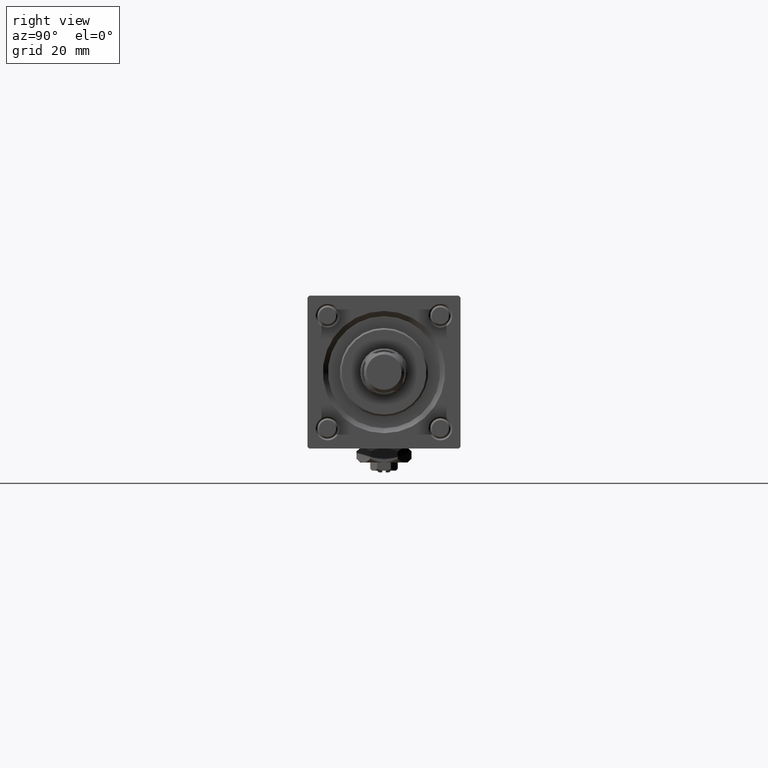
[diagram: clean part render]
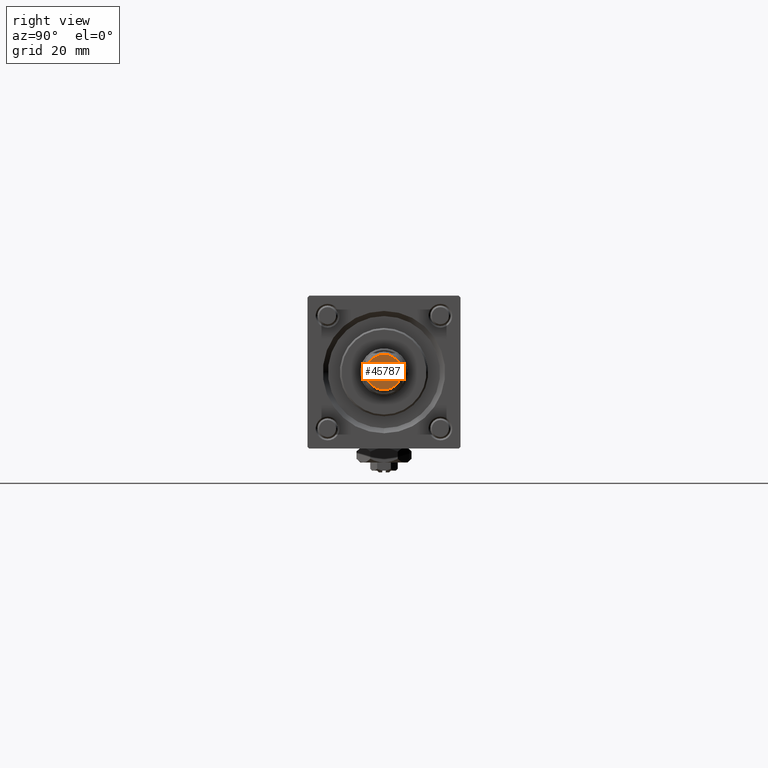
[diagram: same view with one face highlighted and labeled with its STEP entity id]
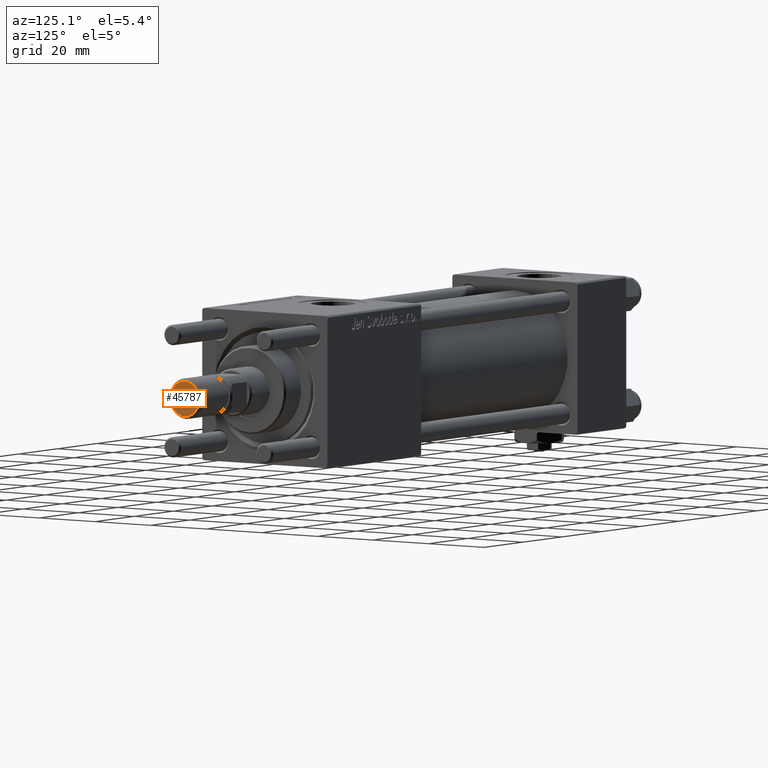
[diagram: same view with one face highlighted and labeled with its STEP entity id]
A machine part, right view. The second image highlights one B-rep face of the part: STEP entity #45787.
A second angle (auxiliary view) of the same face is appended — the face is thin or edge-on in the first view.
In plain terms, the highlighted planar face has unit normal (-1, 0, 0).
Its self-contained STEP definition (entity closure, byte-faithful):
#601 = PLANE ( 'NONE',  #25864 ) ;
#1771 = DIRECTION ( 'NONE',  ( 1.000000000000000000, 0.000000000000000000, 0.000000000000000000 ) ) ;
#3666 = ORIENTED_EDGE ( 'NONE', *, *, #28134, .T. ) ;
#8903 = DIRECTION ( 'NONE',  ( -0.000000000000000000, -0.000000000000000000, -1.000000000000000000 ) ) ;
#10033 = EDGE_CURVE ( 'NONE', #32040, #38750, #13510, .T. ) ;
#13047 = CIRCLE ( 'NONE', #16034, 5.199999999999992184 ) ;
#13510 = CIRCLE ( 'NONE', #24145, 5.199999999999992184 ) ;
#15503 = CARTESIAN_POINT ( 'NONE',  ( 0.000000000000000000, 0.000000000000000000, 0.000000000000000000 ) ) ;
#15946 = CARTESIAN_POINT ( 'NONE',  ( -5.199999999999992184, 6.858022075225173621E-16, 0.000000000000000000 ) ) ;
#16034 = AXIS2_PLACEMENT_3D ( 'NONE', #58439, #8903, #44426 ) ;
#17151 = ORIENTED_EDGE ( 'NONE', *, *, #10033, .T. ) ;
#24145 = AXIS2_PLACEMENT_3D ( 'NONE', #15503, #51036, #1771 ) ;
#25864 = AXIS2_PLACEMENT_3D ( 'NONE', #54624, #27177, #28080 ) ;
#27177 = DIRECTION ( 'NONE',  ( 0.000000000000000000, 0.000000000000000000, 1.000000000000000000 ) ) ;
#28080 = DIRECTION ( 'NONE',  ( 1.000000000000000000, 0.000000000000000000, -0.000000000000000000 ) ) ;
#28134 = EDGE_CURVE ( 'NONE', #38750, #32040, #13047, .T. ) ;
#31949 = FACE_OUTER_BOUND ( 'NONE', #52119, .T. ) ;
#32040 = VERTEX_POINT ( 'NONE', #15946 ) ;
#38750 = VERTEX_POINT ( 'NONE', #41199 ) ;
#41199 = CARTESIAN_POINT ( 'NONE',  ( 5.199999999999992184, 0.000000000000000000, 0.000000000000000000 ) ) ;
#44426 = DIRECTION ( 'NONE',  ( 1.000000000000000000, 0.000000000000000000, 0.000000000000000000 ) ) ;
#45787 = ADVANCED_FACE ( 'NONE', ( #31949 ), #601, .F. ) ;
#51036 = DIRECTION ( 'NONE',  ( -0.000000000000000000, -0.000000000000000000, -1.000000000000000000 ) ) ;
#52119 = EDGE_LOOP ( 'NONE', ( #3666, #17151 ) ) ;
#54624 = CARTESIAN_POINT ( 'NONE',  ( 0.000000000000000000, 0.000000000000000000, 0.000000000000000000 ) ) ;
#58439 = CARTESIAN_POINT ( 'NONE',  ( 0.000000000000000000, 0.000000000000000000, 0.000000000000000000 ) ) ;